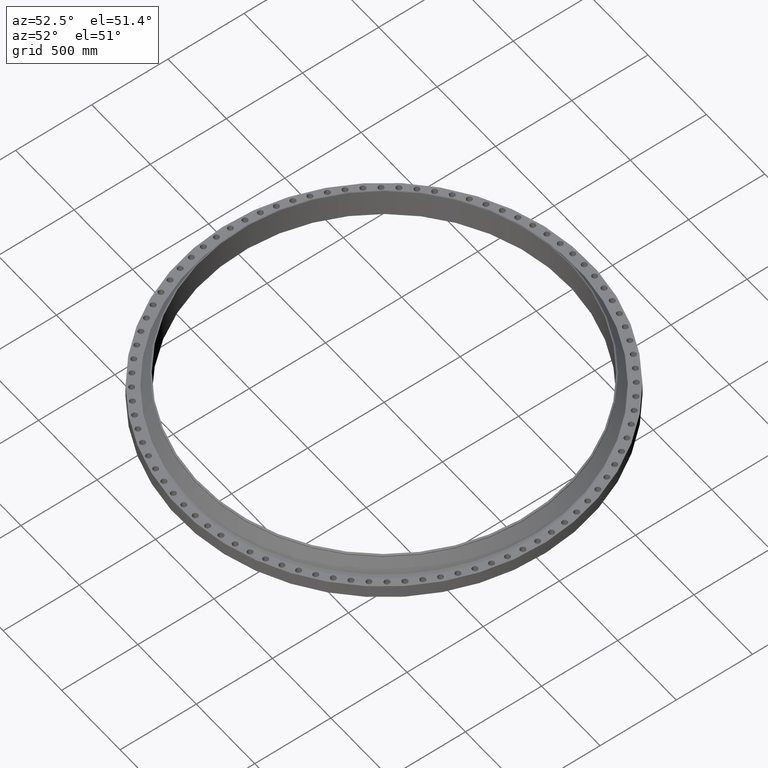
[diagram: clean part render]
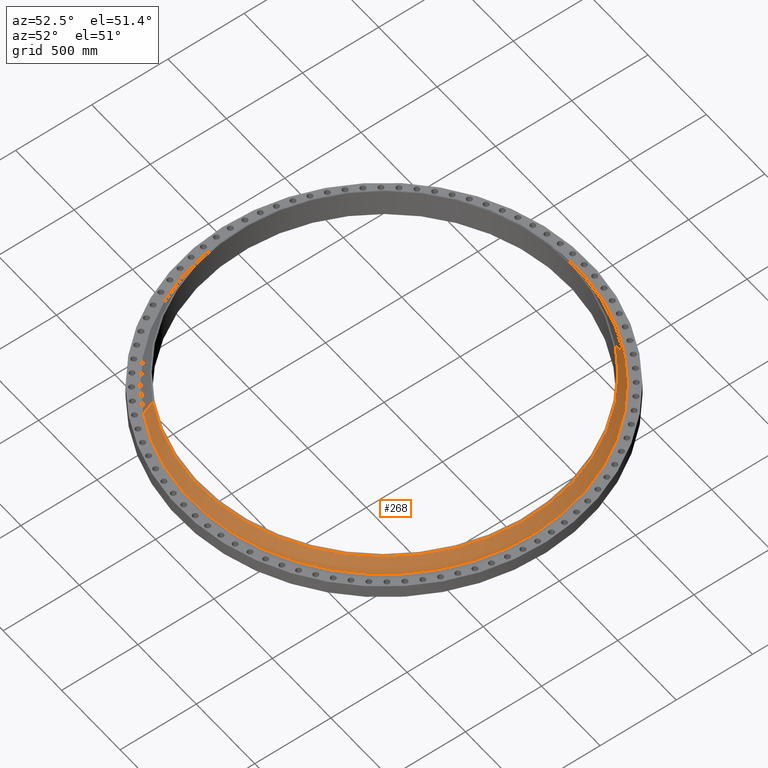
[diagram: same view with one face highlighted and labeled with its STEP entity id]
A machine part, auxiliary view. The second image highlights one B-rep face of the part: STEP entity #268.
In plain terms, the highlighted conical surface has half-angle 29.577 deg.
Its self-contained STEP definition (entity closure, byte-faithful):
#204=AXIS2_PLACEMENT_3D('Circle Axis2P3D',#202,#203,$) ;
#241=AXIS2_PLACEMENT_3D('Cone Axis2P3D',#238,#239,#240) ;
#252=AXIS2_PLACEMENT_3D('Circle Axis2P3D',#250,#251,$) ;
#199=CARTESIAN_POINT('Vertex',(23.9368291004,43.816071765,3.62660339613)) ;
#202=CARTESIAN_POINT('Axis2P3D Location',(0.,0.,3.62660339613)) ;
#206=CARTESIAN_POINT('Vertex',(-23.9368291004,-43.816071765,3.62660339613)) ;
#238=CARTESIAN_POINT('Axis2P3D Location',(0.,0.,7.02398984384)) ;
#243=CARTESIAN_POINT('Line Origine',(23.4746274767,42.970017368,5.32529661999)) ;
#247=CARTESIAN_POINT('Vertex',(23.0124258531,42.1239629709,7.02398984384)) ;
#250=CARTESIAN_POINT('Axis2P3D Location',(0.,0.,7.02398984384)) ;
#254=CARTESIAN_POINT('Vertex',(-23.0124258531,-42.1239629709,7.02398984384)) ;
#257=CARTESIAN_POINT('Line Origine',(-23.4746274767,-42.970017368,5.32529661999)) ;
#203=DIRECTION('Axis2P3D Direction',(0.,0.,-0.0393700787402)) ;
#239=DIRECTION('Axis2P3D Direction',(0.,0.,-0.0393700787402)) ;
#240=DIRECTION('Axis2P3D XDirection',(-0.0188750212049,-0.0345504945626,0.)) ;
#244=DIRECTION('Vector Direction',(0.00931645405992,0.0170536547666,-0.0342400298314)) ;
#251=DIRECTION('Axis2P3D Direction',(0.,0.,-0.0393700787402)) ;
#258=DIRECTION('Vector Direction',(-0.00931645405992,-0.0170536547666,-0.0342400298314)) ;
#245=VECTOR('Line Direction',#244,0.0393700787402) ;
#259=VECTOR('Line Direction',#258,0.0393700787402) ;
#263=ORIENTED_EDGE('',*,*,#208,.F.) ;
#264=ORIENTED_EDGE('',*,*,#249,.T.) ;
#265=ORIENTED_EDGE('',*,*,#256,.T.) ;
#266=ORIENTED_EDGE('',*,*,#261,.F.) ;
#268=ADVANCED_FACE('PartBody',(#267),#242,.T.) ;
#205=CIRCLE('generated circle',#204,49.9281476954) ;
#253=CIRCLE('generated circle',#252,48.0000000002) ;
#242=CONICAL_SURFACE('Cone',#241,48.0000000002,0.516208704301) ;
#208=EDGE_CURVE('',#200,#207,#205,.T.) ;
#249=EDGE_CURVE('',#200,#248,#246,.F.) ;
#256=EDGE_CURVE('',#248,#255,#253,.T.) ;
#261=EDGE_CURVE('',#207,#255,#260,.F.) ;
#262=EDGE_LOOP('',(#263,#264,#265,#266)) ;
#267=FACE_OUTER_BOUND('',#262,.T.) ;
#246=LINE('Line',#243,#245) ;
#260=LINE('Line',#257,#259) ;
#200=VERTEX_POINT('',#199) ;
#207=VERTEX_POINT('',#206) ;
#248=VERTEX_POINT('',#247) ;
#255=VERTEX_POINT('',#254) ;